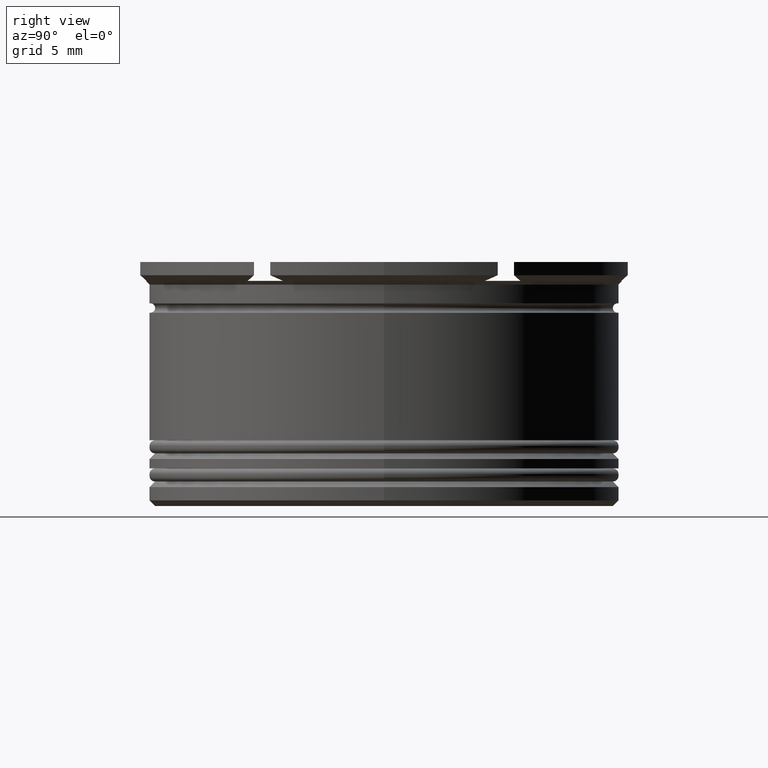
[diagram: clean part render]
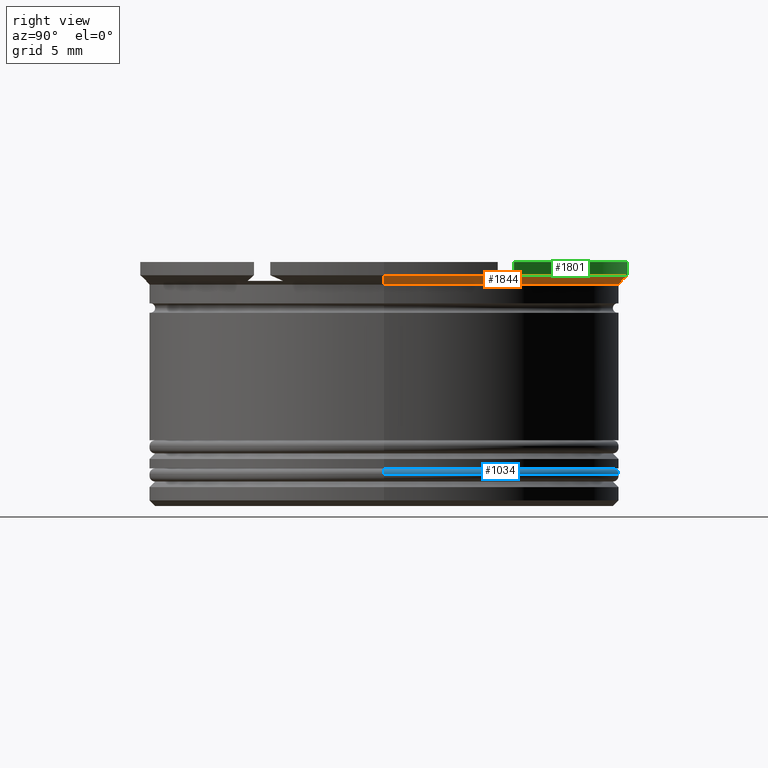
[diagram: same view with three faces highlighted in distinct colors, each labeled with its STEP entity id]
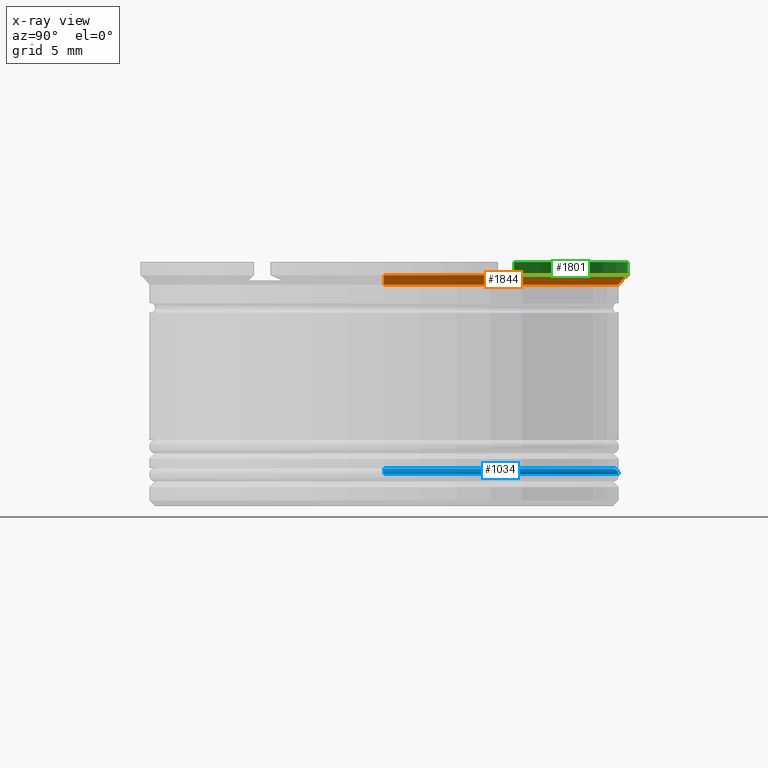
[diagram: x-ray of the same camera — body ghosted, the three highlighted faces saturated]
A machine part, right view with three faces highlighted in distinct colors.
The next image is the same camera in x-ray (body ghosted, the three faces saturated) — at least one of them is partly hidden behind the body in this view.
Their STEP definitions:

[orange] entity #1844 — the highlighted conical surface has half-angle 45 deg.
#17 = CARTESIAN_POINT ( 'NONE',  ( 11.50000000000000000, 6.062177826491065957, -0.7000000000000016209 ) ) ;
#33 = CARTESIAN_POINT ( 'NONE',  ( -12.99999999999999822, 1.592040838891558898E-15, -0.7000000000000018430 ) ) ;
#34 = CARTESIAN_POINT ( 'NONE',  ( -10.80703223213300035, 7.039613222998436726, -0.8039057211591547070 ) ) ;
#40 = EDGE_CURVE ( 'NONE', #219, #57, #666, .T. ) ;
#49 = VERTEX_POINT ( 'NONE', #1398 ) ;
#57 = VERTEX_POINT ( 'NONE', #2136 ) ;
#74 = CARTESIAN_POINT ( 'NONE',  ( -11.50000000000000000, 5.388877434122982812, -1.000000000000000000 ) ) ;
#79 = CARTESIAN_POINT ( 'NONE',  ( 0.000000000000000000, 0.000000000000000000, -0.7000000000000018430 ) ) ;
#89 = CIRCLE ( 'NONE', #1053, 12.69999999999999574 ) ;
#95 = DIRECTION ( 'NONE',  ( -1.000000000000000000, -2.664535259100375697E-15, 0.000000000000000000 ) ) ;
#103 = VERTEX_POINT ( 'NONE', #944 ) ;
#107 = DIRECTION ( 'NONE',  ( -0.000000000000000000, -0.000000000000000000, 1.000000000000000000 ) ) ;
#109 = CARTESIAN_POINT ( 'NONE',  ( -11.50000000000000000, 6.062177826491065957, -0.7000000000000021760 ) ) ;
#118 = FACE_OUTER_BOUND ( 'NONE', #2112, .T. ) ;
#127 = CARTESIAN_POINT ( 'NONE',  ( 11.50000000000000000, 6.062177826491065957, -0.7000000000000016209 ) ) ;
#130 = CIRCLE ( 'NONE', #1365, 12.69999999999999574 ) ;
#153 = DIRECTION ( 'NONE',  ( 0.7071067811865500152, 0.000000000000000000, 0.7071067811865451302 ) ) ;
#161 = VECTOR ( 'NONE', #531, 1000.000000000000114 ) ;
#193 = VERTEX_POINT ( 'NONE', #33 ) ;
#201 = B_SPLINE_CURVE_WITH_KNOTS ( 'NONE', 3,
 ( #1664, #34, #2010, #1858 ),
 .UNSPECIFIED., .F., .F.,
 ( 4, 4 ),
 ( 0.01167327952409323404, 0.01241052937690801869 ),
 .UNSPECIFIED. ) ;
#204 = AXIS2_PLACEMENT_3D ( 'NONE', #427, #1351, #2076 ) ;
#219 = VERTEX_POINT ( 'NONE', #719 ) ;
#248 = CARTESIAN_POINT ( 'NONE',  ( -11.50000000000000000, 6.062177826491065957, -0.7000000000000021760 ) ) ;
#273 = DIRECTION ( 'NONE',  ( -0.000000000000000000, -0.000000000000000000, -1.000000000000000000 ) ) ;
#284 = DIRECTION ( 'NONE',  ( 1.000000000000000000, 0.000000000000000000, 0.000000000000000000 ) ) ;
#287 = CARTESIAN_POINT ( 'NONE',  ( 12.99999999999999822, 0.000000000000000000, -0.7000000000000018430 ) ) ;
#318 = CARTESIAN_POINT ( 'NONE',  ( -0.8866333524485956463, 12.76715818665268820, -0.9037407940360671077 ) ) ;
#325 = CARTESIAN_POINT ( 'NONE',  ( 10.80764056646915883, 7.039262001005701208, -0.8035781565166079110 ) ) ;
#336 = CARTESIAN_POINT ( 'NONE',  ( -12.99999999999999822, 1.592040838891558898E-15, -0.7000000000000018430 ) ) ;
#362 = CARTESIAN_POINT ( 'NONE',  ( -12.49999999999999645, 1.530808498934191127E-15, -1.199999999999998845 ) ) ;
#414 = EDGE_CURVE ( 'NONE', #1735, #1308, #2190, .T. ) ;
#423 = DIRECTION ( 'NONE',  ( -0.000000000000000000, -0.000000000000000000, 1.000000000000000000 ) ) ;
#424 = ORIENTED_EDGE ( 'NONE', *, *, #1714, .T. ) ;
#427 = CARTESIAN_POINT ( 'NONE',  ( 0.000000000000000000, 0.000000000000000000, -1.000000000000000000 ) ) ;
#446 = EDGE_CURVE ( 'NONE', #1097, #1967, #1532, .T. ) ;
#447 = VERTEX_POINT ( 'NONE', #1798 ) ;
#461 = DIRECTION ( 'NONE',  ( -0.000000000000000000, -0.000000000000000000, 1.000000000000000000 ) ) ;
#464 = CARTESIAN_POINT ( 'NONE',  ( 11.50000000000000000, 5.614613161458914092, -0.9042155773924492879 ) ) ;
#484 = ORIENTED_EDGE ( 'NONE', *, *, #829, .F. ) ;
#487 = ORIENTED_EDGE ( 'NONE', *, *, #1934, .F. ) ;
#527 = EDGE_CURVE ( 'NONE', #904, #103, #89, .T. ) ;
#531 = DIRECTION ( 'NONE',  ( -0.7071067811865500152, 8.659560562354962440E-17, 0.7071067811865451302 ) ) ;
#544 = ORIENTED_EDGE ( 'NONE', *, *, #446, .F. ) ;
#624 = VERTEX_POINT ( 'NONE', #1711 ) ;
#643 = CARTESIAN_POINT ( 'NONE',  ( 0.000000000000000000, 0.000000000000000000, -0.7000000000000018430 ) ) ;
#662 = CARTESIAN_POINT ( 'NONE',  ( 10.61336664755139658, 7.151426100389393525, -0.9037407940360669967 ) ) ;
#666 = CIRCLE ( 'NONE', #2127, 12.99999999999999822 ) ;
#677 = ORIENTED_EDGE ( 'NONE', *, *, #414, .F. ) ;
#683 = VERTEX_POINT ( 'NONE', #248 ) ;
#691 = CARTESIAN_POINT ( 'NONE',  ( -0.6923594335308320691, 12.87932228603638407, -0.8035781565166064677 ) ) ;
#719 = CARTESIAN_POINT ( 'NONE',  ( 11.00000000000000000, 6.928203230275506108, -0.7000000000000027311 ) ) ;
#767 = EDGE_CURVE ( 'NONE', #1363, #1700, #1634, .T. ) ;
#795 = ORIENTED_EDGE ( 'NONE', *, *, #2331, .F. ) ;
#829 = EDGE_CURVE ( 'NONE', #683, #193, #2093, .T. ) ;
#834 = ORIENTED_EDGE ( 'NONE', *, *, #527, .T. ) ;
#859 = CIRCLE ( 'NONE', #204, 12.69999999999999574 ) ;
#864 = DIRECTION ( 'NONE',  ( -0.000000000000000000, -0.000000000000000000, 1.000000000000000000 ) ) ;
#876 = CARTESIAN_POINT ( 'NONE',  ( -1.083095244168782445, 12.65373086058253627, -1.000000000000000000 ) ) ;
#904 = VERTEX_POINT ( 'NONE', #1098 ) ;
#910 = ORIENTED_EDGE ( 'NONE', *, *, #1533, .F. ) ;
#943 = AXIS2_PLACEMENT_3D ( 'NONE', #2114, #461, #1797 ) ;
#944 = CARTESIAN_POINT ( 'NONE',  ( -10.41690475583121156, 7.264853426459544572, -1.000000000000000000 ) ) ;
#976 = ORIENTED_EDGE ( 'NONE', *, *, #1689, .F. ) ;
#983 = CARTESIAN_POINT ( 'NONE',  ( 0.000000000000000000, 0.000000000000000000, -0.7000000000000018430 ) ) ;
#1028 = CARTESIAN_POINT ( 'NONE',  ( 0.4999999999999911182, 12.99038105676657828, -0.7000000000000021760 ) ) ;
#1053 = AXIS2_PLACEMENT_3D ( 'NONE', #1639, #1843, #2184 ) ;
#1080 = ORIENTED_EDGE ( 'NONE', *, *, #1498, .T. ) ;
#1097 = VERTEX_POINT ( 'NONE', #1569 ) ;
#1098 = CARTESIAN_POINT ( 'NONE',  ( -11.50000000000000000, 5.388877434122982812, -1.000000000000000000 ) ) ;
#1108 = CARTESIAN_POINT ( 'NONE',  ( 12.99999999999999822, 0.000000000000000000, -0.7000000000000018430 ) ) ;
#1129 = CARTESIAN_POINT ( 'NONE',  ( -0.4999999999999927280, 12.99038105676657828, -0.7000000000000026201 ) ) ;
#1138 = DIRECTION ( 'NONE',  ( -0.000000000000000000, -0.000000000000000000, 1.000000000000000000 ) ) ;
#1148 = B_SPLINE_CURVE_WITH_KNOTS ( 'NONE', 3,
 ( #2316, #662, #325, #1399 ),
 .UNSPECIFIED., .F., .F.,
 ( 4, 4 ),
 ( 0.02350201055305046680, 0.02423821957421442436 ),
 .UNSPECIFIED. ) ;
#1160 = AXIS2_PLACEMENT_3D ( 'NONE', #643, #1408, #1940 ) ;
#1164 = AXIS2_PLACEMENT_3D ( 'NONE', #1954, #864, #284 ) ;
#1202 = DIRECTION ( 'NONE',  ( 1.000000000000000000, 0.000000000000000000, 0.000000000000000000 ) ) ;
#1234 = B_SPLINE_CURVE_WITH_KNOTS ( 'NONE', 3,
 ( #74, #1545, #2282, #109 ),
 .UNSPECIFIED., .F., .F.,
 ( 4, 4 ),
 ( 0.02202668671584448457, 0.02276440960758142201 ),
 .UNSPECIFIED. ) ;
#1238 = ORIENTED_EDGE ( 'NONE', *, *, #767, .T. ) ;
#1242 = LINE ( 'NONE', #1108, #1433 ) ;
#1308 = VERTEX_POINT ( 'NONE', #1771 ) ;
#1351 = DIRECTION ( 'NONE',  ( -0.000000000000000000, -0.000000000000000000, -1.000000000000000000 ) ) ;
#1363 = VERTEX_POINT ( 'NONE', #2105 ) ;
#1365 = AXIS2_PLACEMENT_3D ( 'NONE', #1929, #273, #2197 ) ;
#1398 = CARTESIAN_POINT ( 'NONE',  ( 1.083095244168780669, 12.65373086058253449, -1.000000000000000000 ) ) ;
#1399 = CARTESIAN_POINT ( 'NONE',  ( 11.00000000000000000, 6.928203230275506108, -0.7000000000000027311 ) ) ;
#1404 = EDGE_CURVE ( 'NONE', #1411, #1735, #2011, .T. ) ;
#1408 = DIRECTION ( 'NONE',  ( -0.000000000000000000, -0.000000000000000000, 1.000000000000000000 ) ) ;
#1411 = VERTEX_POINT ( 'NONE', #287 ) ;
#1426 = CARTESIAN_POINT ( 'NONE',  ( -0.4999999999999927280, 12.99038105676657828, -0.7000000000000026201 ) ) ;
#1430 = CARTESIAN_POINT ( 'NONE',  ( 0.000000000000000000, 0.000000000000000000, -0.7000000000000018430 ) ) ;
#1433 = VECTOR ( 'NONE', #153, 1000.000000000000114 ) ;
#1436 = LINE ( 'NONE', #336, #161 ) ;
#1475 = AXIS2_PLACEMENT_3D ( 'NONE', #1430, #107, #1202 ) ;
#1498 = EDGE_CURVE ( 'NONE', #1097, #49, #859, .T. ) ;
#1504 = ORIENTED_EDGE ( 'NONE', *, *, #2138, .F. ) ;
#1532 = B_SPLINE_CURVE_WITH_KNOTS ( 'NONE', 3,
 ( #876, #318, #691, #1426 ),
 .UNSPECIFIED., .F., .F.,
 ( 4, 4 ),
 ( 0.02350201055305047373, 0.02423821957421443476 ),
 .UNSPECIFIED. ) ;
#1533 = EDGE_CURVE ( 'NONE', #904, #683, #1234, .T. ) ;
#1545 = CARTESIAN_POINT ( 'NONE',  ( -11.50000000000000000, 5.615148861445232065, -0.9039882686076082807 ) ) ;
#1569 = CARTESIAN_POINT ( 'NONE',  ( -1.083095244168782445, 12.65373086058253627, -1.000000000000000000 ) ) ;
#1576 = CARTESIAN_POINT ( 'NONE',  ( 0.8872787262681899323, 12.76678557990421758, -0.9040570038151654053 ) ) ;
#1582 = B_SPLINE_CURVE_WITH_KNOTS ( 'NONE', 3,
 ( #1028, #1815, #1576, #2172 ),
 .UNSPECIFIED., .F., .F.,
 ( 4, 4 ),
 ( 0.01167327952409322363, 0.01241052937690801175 ),
 .UNSPECIFIED. ) ;
#1634 = CIRCLE ( 'NONE', #1164, 12.49999999999999645 ) ;
#1639 = CARTESIAN_POINT ( 'NONE',  ( 0.000000000000000000, 0.000000000000000000, -1.000000000000000000 ) ) ;
#1664 = CARTESIAN_POINT ( 'NONE',  ( -11.00000000000000000, 6.928203230275504332, -0.7000000000000029532 ) ) ;
#1676 = CONICAL_SURFACE ( 'NONE', #1475, 12.99999999999999822, 0.7853981633974517207 ) ;
#1689 = EDGE_CURVE ( 'NONE', #1363, #1411, #1242, .T. ) ;
#1700 = VERTEX_POINT ( 'NONE', #362 ) ;
#1711 = CARTESIAN_POINT ( 'NONE',  ( 10.41690475583120801, 7.264853426459545460, -1.000000000000000000 ) ) ;
#1714 = EDGE_CURVE ( 'NONE', #1700, #193, #1436, .T. ) ;
#1715 = ORIENTED_EDGE ( 'NONE', *, *, #2002, .F. ) ;
#1735 = VERTEX_POINT ( 'NONE', #17 ) ;
#1771 = CARTESIAN_POINT ( 'NONE',  ( 11.50000000000000000, 5.388877434122982812, -1.000000000000000000 ) ) ;
#1795 = AXIS2_PLACEMENT_3D ( 'NONE', #79, #1138, #95 ) ;
#1797 = DIRECTION ( 'NONE',  ( -1.000000000000000000, 2.664535259100375697E-15, 0.000000000000000000 ) ) ;
#1798 = CARTESIAN_POINT ( 'NONE',  ( -11.00000000000000000, 6.928203230275504332, -0.7000000000000029532 ) ) ;
#1815 = CARTESIAN_POINT ( 'NONE',  ( 0.6929677678669896590, 12.87897106404364500, -0.8039057211591552621 ) ) ;
#1824 = ORIENTED_EDGE ( 'NONE', *, *, #1404, .F. ) ;
#1843 = DIRECTION ( 'NONE',  ( -0.000000000000000000, -0.000000000000000000, -1.000000000000000000 ) ) ;
#1844 = ADVANCED_FACE ( 'NONE', ( #118 ), #1676, .T. ) ;
#1858 = CARTESIAN_POINT ( 'NONE',  ( -10.41690475583121156, 7.264853426459544572, -1.000000000000000000 ) ) ;
#1887 = ORIENTED_EDGE ( 'NONE', *, *, #2235, .T. ) ;
#1896 = DIRECTION ( 'NONE',  ( -1.000000000000000000, -8.881784197001252323E-16, 0.000000000000000000 ) ) ;
#1929 = CARTESIAN_POINT ( 'NONE',  ( 0.000000000000000000, 0.000000000000000000, -1.000000000000000000 ) ) ;
#1934 = EDGE_CURVE ( 'NONE', #624, #219, #1148, .T. ) ;
#1940 = DIRECTION ( 'NONE',  ( -1.000000000000000000, 0.000000000000000000, 0.000000000000000000 ) ) ;
#1954 = CARTESIAN_POINT ( 'NONE',  ( 0.000000000000000000, 0.000000000000000000, -1.199999999999998845 ) ) ;
#1967 = VERTEX_POINT ( 'NONE', #1129 ) ;
#1982 = CIRCLE ( 'NONE', #1795, 12.99999999999999822 ) ;
#2002 = EDGE_CURVE ( 'NONE', #447, #103, #201, .T. ) ;
#2010 = CARTESIAN_POINT ( 'NONE',  ( -10.61272127373180219, 7.151798707137864142, -0.9040570038151640730 ) ) ;
#2011 = CIRCLE ( 'NONE', #1160, 12.99999999999999822 ) ;
#2076 = DIRECTION ( 'NONE',  ( 1.000000000000000000, 6.217248937900877415E-15, 0.000000000000000000 ) ) ;
#2093 = CIRCLE ( 'NONE', #943, 12.99999999999999822 ) ;
#2105 = CARTESIAN_POINT ( 'NONE',  ( 12.49999999999999645, 0.000000000000000000, -1.199999999999998845 ) ) ;
#2112 = EDGE_LOOP ( 'NONE', ( #1238, #424, #484, #910, #834, #1715, #1504, #544, #1080, #795, #2221, #487, #1887, #677, #1824, #976 ) ) ;
#2114 = CARTESIAN_POINT ( 'NONE',  ( 0.000000000000000000, 0.000000000000000000, -0.7000000000000018430 ) ) ;
#2117 = CARTESIAN_POINT ( 'NONE',  ( 11.50000000000000000, 5.839245312334317539, -0.8039581957019209524 ) ) ;
#2127 = AXIS2_PLACEMENT_3D ( 'NONE', #983, #423, #1896 ) ;
#2136 = CARTESIAN_POINT ( 'NONE',  ( 0.4999999999999911182, 12.99038105676657828, -0.7000000000000021760 ) ) ;
#2138 = EDGE_CURVE ( 'NONE', #1967, #447, #1982, .T. ) ;
#2172 = CARTESIAN_POINT ( 'NONE',  ( 1.083095244168780669, 12.65373086058253449, -1.000000000000000000 ) ) ;
#2184 = DIRECTION ( 'NONE',  ( 1.000000000000000000, 0.000000000000000000, 0.000000000000000000 ) ) ;
#2190 = B_SPLINE_CURVE_WITH_KNOTS ( 'NONE', 3,
 ( #127, #2117, #464, #2345 ),
 .UNSPECIFIED., .F., .F.,
 ( 4, 4 ),
 ( 0.01021404004792426413, 0.01094458515302338883 ),
 .UNSPECIFIED. ) ;
#2197 = DIRECTION ( 'NONE',  ( 1.000000000000000000, -8.881784197001252323E-16, 0.000000000000000000 ) ) ;
#2221 = ORIENTED_EDGE ( 'NONE', *, *, #40, .F. ) ;
#2235 = EDGE_CURVE ( 'NONE', #624, #1308, #130, .T. ) ;
#2282 = CARTESIAN_POINT ( 'NONE',  ( -11.50000000000000000, 5.839511304754299914, -0.8038341577518859360 ) ) ;
#2316 = CARTESIAN_POINT ( 'NONE',  ( 10.41690475583120801, 7.264853426459545460, -1.000000000000000000 ) ) ;
#2331 = EDGE_CURVE ( 'NONE', #57, #49, #1582, .T. ) ;
#2345 = CARTESIAN_POINT ( 'NONE',  ( 11.50000000000000000, 5.388877434122982812, -1.000000000000000000 ) ) ;

[blue] entity #1034 — the highlighted toroidal blend (fillet) surface has major radius 12.2 mm and minor (blend) radius 0.3 mm.
#72 = EDGE_CURVE ( 'NONE', #1646, #2315, #1314, .T. ) ;
#91 = CIRCLE ( 'NONE', #1011, 12.20000000000000107 ) ;
#159 = AXIS2_PLACEMENT_3D ( 'NONE', #460, #1191, #1571 ) ;
#229 = DIRECTION ( 'NONE',  ( -1.000000000000000000, 0.000000000000000000, 0.000000000000000000 ) ) ;
#269 = CARTESIAN_POINT ( 'NONE',  ( 0.000000000000000000, 0.000000000000000000, -11.00000000000000000 ) ) ;
#294 = VERTEX_POINT ( 'NONE', #448 ) ;
#306 = DIRECTION ( 'NONE',  ( -1.000000000000000000, 0.000000000000000000, 0.000000000000000000 ) ) ;
#448 = CARTESIAN_POINT ( 'NONE',  ( 12.50000000000000000, 0.000000000000000000, -11.29999999999999716 ) ) ;
#451 = VERTEX_POINT ( 'NONE', #503 ) ;
#460 = CARTESIAN_POINT ( 'NONE',  ( 12.20000000000000107, 1.494069094959771056E-15, -11.29999999999999716 ) ) ;
#503 = CARTESIAN_POINT ( 'NONE',  ( 12.20000000000000107, 1.512438796946981289E-15, -11.00000000000000000 ) ) ;
#773 = FACE_OUTER_BOUND ( 'NONE', #2008, .T. ) ;
#800 = EDGE_CURVE ( 'NONE', #451, #1646, #91, .T. ) ;
#1000 = DIRECTION ( 'NONE',  ( 0.000000000000000000, 0.000000000000000000, -1.000000000000000000 ) ) ;
#1011 = AXIS2_PLACEMENT_3D ( 'NONE', #269, #1033, #306 ) ;
#1033 = DIRECTION ( 'NONE',  ( -0.000000000000000000, -0.000000000000000000, 1.000000000000000000 ) ) ;
#1034 = ADVANCED_FACE ( 'NONE', ( #773 ), #1938, .T. ) ;
#1133 = DIRECTION ( 'NONE',  ( 0.000000000000000000, 0.000000000000000000, -1.000000000000000000 ) ) ;
#1174 = CARTESIAN_POINT ( 'NONE',  ( 0.000000000000000000, 0.000000000000000000, -11.29999999999999716 ) ) ;
#1191 = DIRECTION ( 'NONE',  ( -1.224646799147353207E-16, 1.000000000000000000, 0.000000000000000000 ) ) ;
#1203 = CIRCLE ( 'NONE', #159, 0.2999999999999999334 ) ;
#1249 = DIRECTION ( 'NONE',  ( 0.000000000000000000, 0.000000000000000000, -1.000000000000000000 ) ) ;
#1274 = AXIS2_PLACEMENT_3D ( 'NONE', #1880, #1133, #1687 ) ;
#1314 = CIRCLE ( 'NONE', #1509, 0.2999999999999999334 ) ;
#1423 = CARTESIAN_POINT ( 'NONE',  ( -12.20000000000000107, 0.000000000000000000, -11.00000000000000000 ) ) ;
#1429 = CARTESIAN_POINT ( 'NONE',  ( -12.20000000000000107, 0.000000000000000000, -11.29999999999999716 ) ) ;
#1509 = AXIS2_PLACEMENT_3D ( 'NONE', #1429, #2164, #1249 ) ;
#1517 = AXIS2_PLACEMENT_3D ( 'NONE', #1174, #1000, #229 ) ;
#1571 = DIRECTION ( 'NONE',  ( -1.000000000000000000, -1.224646799147353207E-16, 0.000000000000000000 ) ) ;
#1637 = CARTESIAN_POINT ( 'NONE',  ( -12.50000000000000000, 1.530808498934191521E-15, -11.29999999999999716 ) ) ;
#1638 = EDGE_CURVE ( 'NONE', #451, #294, #1203, .T. ) ;
#1640 = ORIENTED_EDGE ( 'NONE', *, *, #1638, .T. ) ;
#1646 = VERTEX_POINT ( 'NONE', #1423 ) ;
#1687 = DIRECTION ( 'NONE',  ( -1.000000000000000000, 0.000000000000000000, 0.000000000000000000 ) ) ;
#1880 = CARTESIAN_POINT ( 'NONE',  ( 0.000000000000000000, 0.000000000000000000, -11.29999999999999716 ) ) ;
#1938 = TOROIDAL_SURFACE ( 'NONE', #1274, 12.20000000000000107, 0.2999999999999999889 ) ;
#1964 = ORIENTED_EDGE ( 'NONE', *, *, #2175, .F. ) ;
#2008 = EDGE_LOOP ( 'NONE', ( #2385, #1640, #1964, #2324 ) ) ;
#2164 = DIRECTION ( 'NONE',  ( -0.000000000000000000, -1.000000000000000000, -0.000000000000000000 ) ) ;
#2175 = EDGE_CURVE ( 'NONE', #2315, #294, #2328, .T. ) ;
#2315 = VERTEX_POINT ( 'NONE', #1637 ) ;
#2324 = ORIENTED_EDGE ( 'NONE', *, *, #72, .F. ) ;
#2328 = CIRCLE ( 'NONE', #1517, 12.50000000000000000 ) ;
#2385 = ORIENTED_EDGE ( 'NONE', *, *, #800, .F. ) ;

[green] entity #1801 — the highlighted cylindrical surface (partial cylindrical patch) has radius 13 mm, axis along (-0, -0, 1).
#40 = EDGE_CURVE ( 'NONE', #219, #57, #666, .T. ) ;
#57 = VERTEX_POINT ( 'NONE', #2136 ) ;
#80 = ORIENTED_EDGE ( 'NONE', *, *, #1989, .F. ) ;
#128 = AXIS2_PLACEMENT_3D ( 'NONE', #2203, #1115, #1286 ) ;
#219 = VERTEX_POINT ( 'NONE', #719 ) ;
#250 = DIRECTION ( 'NONE',  ( 0.000000000000000000, 0.000000000000000000, -1.000000000000000000 ) ) ;
#339 = CARTESIAN_POINT ( 'NONE',  ( 0.4999999999999908962, 12.99038105676657651, 0.000000000000000000 ) ) ;
#384 = ORIENTED_EDGE ( 'NONE', *, *, #1608, .F. ) ;
#423 = DIRECTION ( 'NONE',  ( -0.000000000000000000, -0.000000000000000000, 1.000000000000000000 ) ) ;
#474 = CIRCLE ( 'NONE', #128, 12.99999999999999822 ) ;
#490 = CARTESIAN_POINT ( 'NONE',  ( 11.00000000000000355, 6.928203230275501667, 0.000000000000000000 ) ) ;
#508 = LINE ( 'NONE', #490, #1359 ) ;
#615 = VERTEX_POINT ( 'NONE', #339 ) ;
#666 = CIRCLE ( 'NONE', #2127, 12.99999999999999822 ) ;
#719 = CARTESIAN_POINT ( 'NONE',  ( 11.00000000000000000, 6.928203230275506108, -0.7000000000000027311 ) ) ;
#735 = VERTEX_POINT ( 'NONE', #1145 ) ;
#839 = LINE ( 'NONE', #1573, #1787 ) ;
#887 = DIRECTION ( 'NONE',  ( -0.000000000000000000, -0.000000000000000000, 1.000000000000000000 ) ) ;
#983 = CARTESIAN_POINT ( 'NONE',  ( 0.000000000000000000, 0.000000000000000000, -0.7000000000000018430 ) ) ;
#1068 = CARTESIAN_POINT ( 'NONE',  ( 0.000000000000000000, 0.000000000000000000, 0.000000000000000000 ) ) ;
#1107 = ORIENTED_EDGE ( 'NONE', *, *, #1414, .F. ) ;
#1115 = DIRECTION ( 'NONE',  ( -0.000000000000000000, -0.000000000000000000, 1.000000000000000000 ) ) ;
#1145 = CARTESIAN_POINT ( 'NONE',  ( 11.00000000000000000, 6.928203230275504332, 0.000000000000000000 ) ) ;
#1286 = DIRECTION ( 'NONE',  ( 1.000000000000000000, 0.000000000000000000, 0.000000000000000000 ) ) ;
#1359 = VECTOR ( 'NONE', #2113, 1000.000000000000000 ) ;
#1414 = EDGE_CURVE ( 'NONE', #615, #57, #839, .T. ) ;
#1443 = FACE_OUTER_BOUND ( 'NONE', #1623, .T. ) ;
#1573 = CARTESIAN_POINT ( 'NONE',  ( 0.4999999999999865663, 12.99038105676658006, 0.000000000000000000 ) ) ;
#1580 = DIRECTION ( 'NONE',  ( 1.000000000000000000, 0.000000000000000000, 0.000000000000000000 ) ) ;
#1608 = EDGE_CURVE ( 'NONE', #219, #735, #508, .T. ) ;
#1623 = EDGE_LOOP ( 'NONE', ( #1107, #80, #384, #2100 ) ) ;
#1787 = VECTOR ( 'NONE', #250, 1000.000000000000000 ) ;
#1801 = ADVANCED_FACE ( 'NONE', ( #1443 ), #1809, .T. ) ;
#1809 = CYLINDRICAL_SURFACE ( 'NONE', #1979, 12.99999999999999822 ) ;
#1896 = DIRECTION ( 'NONE',  ( -1.000000000000000000, -8.881784197001252323E-16, 0.000000000000000000 ) ) ;
#1979 = AXIS2_PLACEMENT_3D ( 'NONE', #1068, #887, #1580 ) ;
#1989 = EDGE_CURVE ( 'NONE', #735, #615, #474, .T. ) ;
#2100 = ORIENTED_EDGE ( 'NONE', *, *, #40, .T. ) ;
#2113 = DIRECTION ( 'NONE',  ( -0.000000000000000000, -0.000000000000000000, 1.000000000000000000 ) ) ;
#2127 = AXIS2_PLACEMENT_3D ( 'NONE', #983, #423, #1896 ) ;
#2136 = CARTESIAN_POINT ( 'NONE',  ( 0.4999999999999911182, 12.99038105676657828, -0.7000000000000021760 ) ) ;
#2203 = CARTESIAN_POINT ( 'NONE',  ( 0.000000000000000000, 0.000000000000000000, 0.000000000000000000 ) ) ;